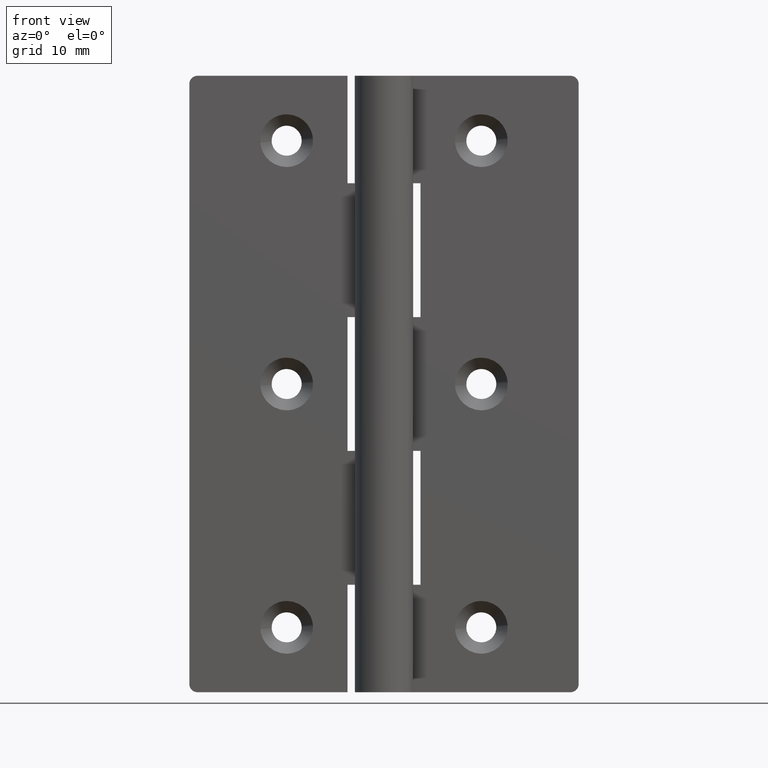
[diagram: clean part render]
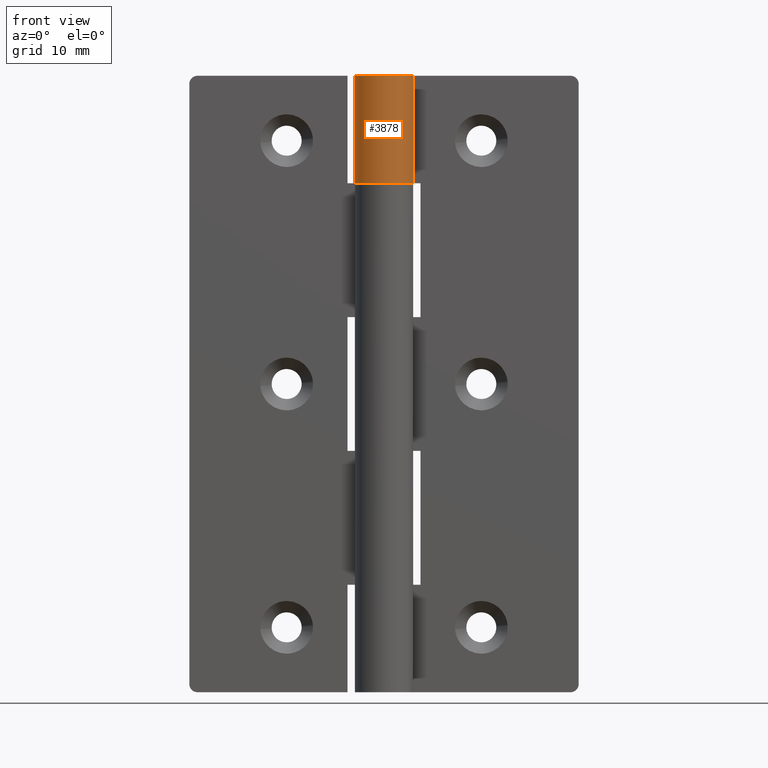
[diagram: same view with one face highlighted and labeled with its STEP entity id]
A machine part, front view. The second image highlights one B-rep face of the part: STEP entity #3878.
In plain terms, the highlighted face is a freeform B-spline surface patch.
Its self-contained STEP definition (entity closure, byte-faithful):
#3528=CARTESIAN_POINT('',(3.026136150274805,1.950000000000000,62.750007999999987));
#3529=VERTEX_POINT('',#3528);
#3530=CARTESIAN_POINT('',(0.0,3.599998000000000,62.750007999999987));
#3531=VERTEX_POINT('',#3530);
#3532=CARTESIAN_POINT('',(3.026136150274805,1.950000000000000,62.750007999999987));
#3533=CARTESIAN_POINT('',(4.541419292909129,-0.401512982956539,62.750007999999994));
#3534=CARTESIAN_POINT('',(2.637063597806924,-2.450691853562209,62.750007999999987));
#3535=CARTESIAN_POINT('',(0.732707902704718,-4.499870724167880,62.750007999999994));
#3536=CARTESIAN_POINT('',(-1.723368793961406,-3.160697125855822,62.750007999999987));
#3537=CARTESIAN_POINT('',(-4.179445490627531,-1.821523527543765,62.750007999999994));
#3538=CARTESIAN_POINT('',(-3.488445646206988,0.889236523647994,62.750007999999987));
#3539=CARTESIAN_POINT('',(-2.797445801786445,3.599996574839754,62.750007999999994));
#3540=CARTESIAN_POINT('',(0.0,3.599998000000000,62.750007999999987));
#3548=(BOUNDED_CURVE()B_SPLINE_CURVE(2,(#3532,#3533,#3534,#3535,#3536,#3537,#3538,#3539,#3540),.UNSPECIFIED.,.F.,.U.)B_SPLINE_CURVE_WITH_KNOTS((3,2,2,2,3),(0.0,0.250000000000000,0.500000000000000,0.750000000000000,1.0),.UNSPECIFIED.)CURVE()GEOMETRIC_REPRESENTATION_ITEM()RATIONAL_B_SPLINE_CURVE((1.0,0.789623639943024,1.0,0.789623639943024,1.0,0.789623639943024,1.0,0.789623639943024,1.0))REPRESENTATION_ITEM(''));
#3549=EDGE_CURVE('',#3529,#3531,#3548,.T.);
#3551=CARTESIAN_POINT('',(0.003794732666213,3.599998000000000,62.750007999999987));
#3552=VERTEX_POINT('',#3551);
#3553=CARTESIAN_POINT('',(0.0,3.599998000000000,62.750007999999987));
#3554=CARTESIAN_POINT('',(0.003794732666213,3.599998000000000,62.750007999999987));
#3555=QUASI_UNIFORM_CURVE('',1,(#3553,#3554),.UNSPECIFIED.,.F.,.U.);
#3556=EDGE_CURVE('',#3531,#3552,#3555,.T.);
#3711=CARTESIAN_POINT('',(0.003794732666213,3.599998000000000,76.000007999999994));
#3712=VERTEX_POINT('',#3711);
#3718=CARTESIAN_POINT('',(3.026136150274805,1.950000000000000,76.000007999999994));
#3719=VERTEX_POINT('',#3718);
#3720=CARTESIAN_POINT('',(3.026136150274802,1.950000000000000,76.000007999999994));
#3721=CARTESIAN_POINT('',(4.541831416596925,-0.402153968316802,76.000007999999994));
#3722=CARTESIAN_POINT('',(2.636417691941326,-2.451387719969808,76.000007999999994));
#3723=CARTESIAN_POINT('',(0.731003967285728,-4.500621471622814,76.000007999999994));
#3724=CARTESIAN_POINT('',(-1.725034387729974,-3.159787391763736,76.000007999999994));
#3725=CARTESIAN_POINT('',(-4.181072742745673,-1.818953311904659,76.000007999999994));
#3726=CARTESIAN_POINT('',(-3.487741550518990,0.891997128237189,76.000007999999994));
#3727=CARTESIAN_POINT('',(-2.794410358292305,3.602947568379042,76.000007999999994));
#3728=CARTESIAN_POINT('',(0.003794732666212,3.599997999999999,76.000007999999994));
#3736=(BOUNDED_CURVE()B_SPLINE_CURVE(2,(#3720,#3721,#3722,#3723,#3724,#3725,#3726,#3727,#3728),.UNSPECIFIED.,.F.,.U.)B_SPLINE_CURVE_WITH_KNOTS((3,2,2,2,3),(0.0,0.250000000000000,0.500000000000000,0.750000000000000,1.0),.UNSPECIFIED.)CURVE()GEOMETRIC_REPRESENTATION_ITEM()RATIONAL_B_SPLINE_CURVE((1.0,0.789542785308570,1.0,0.789542785308570,1.0,0.789542785308570,1.0,0.789542785308570,1.0))REPRESENTATION_ITEM(''));
#3737=EDGE_CURVE('',#3719,#3712,#3736,.T.);
#3841=CARTESIAN_POINT('',(0.035210098515492,3.599827808237849,76.331257999999991));
#3842=CARTESIAN_POINT('',(0.035210098515492,3.599827808237849,62.410476749999987));
#3843=CARTESIAN_POINT('',(-4.410207025893232,3.643308658775950,76.331257999999991));
#3844=CARTESIAN_POINT('',(-4.410207025893232,3.643308658775950,62.410476749999987));
#3845=CARTESIAN_POINT('',(-3.528483524798903,-0.714005612878989,76.331257999999991));
#3846=CARTESIAN_POINT('',(-3.528483524798903,-0.714005612878989,62.410476749999987));
#3847=CARTESIAN_POINT('',(-2.646760023704573,-5.071319884533928,76.331257999999991));
#3848=CARTESIAN_POINT('',(-2.646760023704573,-5.071319884533928,62.410476749999987));
#3849=CARTESIAN_POINT('',(1.432015852811599,-3.302927579783768,76.331257999999991));
#3850=CARTESIAN_POINT('',(1.432015852811599,-3.302927579783768,62.410476749999987));
#3851=CARTESIAN_POINT('',(5.510791729327772,-1.534535275033608,76.331257999999991));
#3852=CARTESIAN_POINT('',(5.510791729327772,-1.534535275033608,62.410476749999987));
#3853=CARTESIAN_POINT('',(2.933017850327114,2.087440128401892,76.331257999999991));
#3854=CARTESIAN_POINT('',(2.933017850327114,2.087440128401892,62.410476749999987));
#3862=(BOUNDED_SURFACE()B_SPLINE_SURFACE(1,2,((#3841,#3843,#3845,#3847,#3849,#3851,#3853),(#3842,#3844,#3846,#3848,#3850,#3852,#3854)),.UNSPECIFIED.,.F.,.F.,.U.)B_SPLINE_SURFACE_WITH_KNOTS((2,2),(3,2,2,3),(0.0,13.920781250000010),(0.0,6.868447670853502,13.736895341707010,20.605343012560510),.UNSPECIFIED.)GEOMETRIC_REPRESENTATION_ITEM()RATIONAL_B_SPLINE_SURFACE(((1.0,0.629320391049838,1.0,0.629320391049838,1.0,0.629320391049838,1.0),(1.0,0.629320391049838,1.0,0.629320391049838,1.0,0.629320391049838,1.0)))REPRESENTATION_ITEM('')SURFACE());
#3863=ORIENTED_EDGE('',*,*,#3549,.F.);
#3864=CARTESIAN_POINT('',(3.026136150274805,1.950000000000000,76.000007999999994));
#3865=CARTESIAN_POINT('',(3.026136150274805,1.950000000000000,62.750007999999987));
#3866=QUASI_UNIFORM_CURVE('',1,(#3864,#3865),.UNSPECIFIED.,.F.,.U.);
#3867=EDGE_CURVE('',#3719,#3529,#3866,.T.);
#3868=ORIENTED_EDGE('',*,*,#3867,.F.);
#3869=ORIENTED_EDGE('',*,*,#3737,.T.);
#3870=CARTESIAN_POINT('',(0.003794732666213,3.599998000000000,76.000007999999994));
#3871=CARTESIAN_POINT('',(0.003794732666213,3.599998000000000,62.750007999999987));
#3872=QUASI_UNIFORM_CURVE('',1,(#3870,#3871),.UNSPECIFIED.,.F.,.U.);
#3873=EDGE_CURVE('',#3712,#3552,#3872,.T.);
#3874=ORIENTED_EDGE('',*,*,#3873,.T.);
#3875=ORIENTED_EDGE('',*,*,#3556,.F.);
#3876=EDGE_LOOP('',(#3863,#3868,#3869,#3874,#3875));
#3877=FACE_OUTER_BOUND('',#3876,.T.);
#3878=ADVANCED_FACE('',(#3877),#3862,.T.);